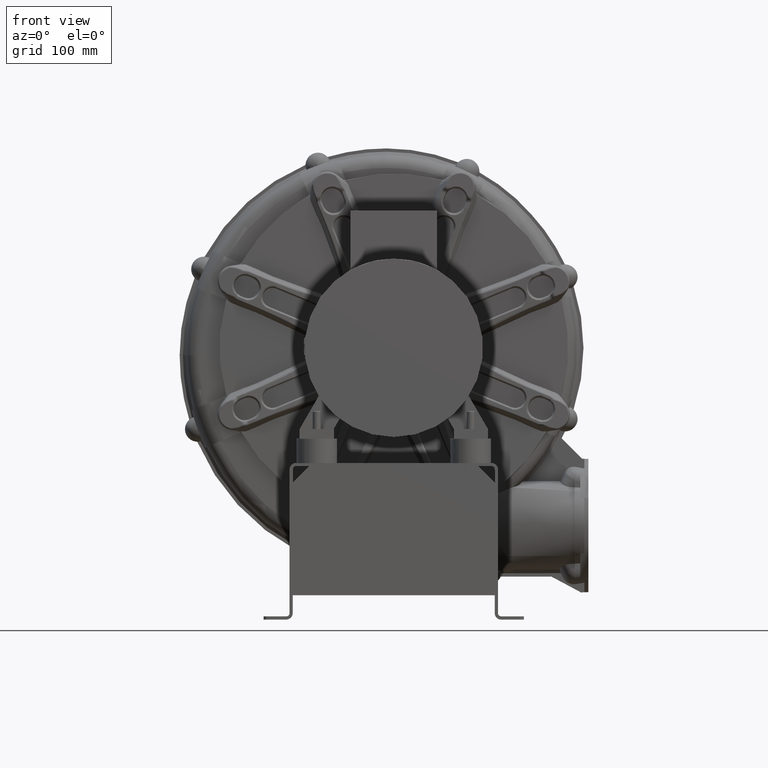
[diagram: clean part render]
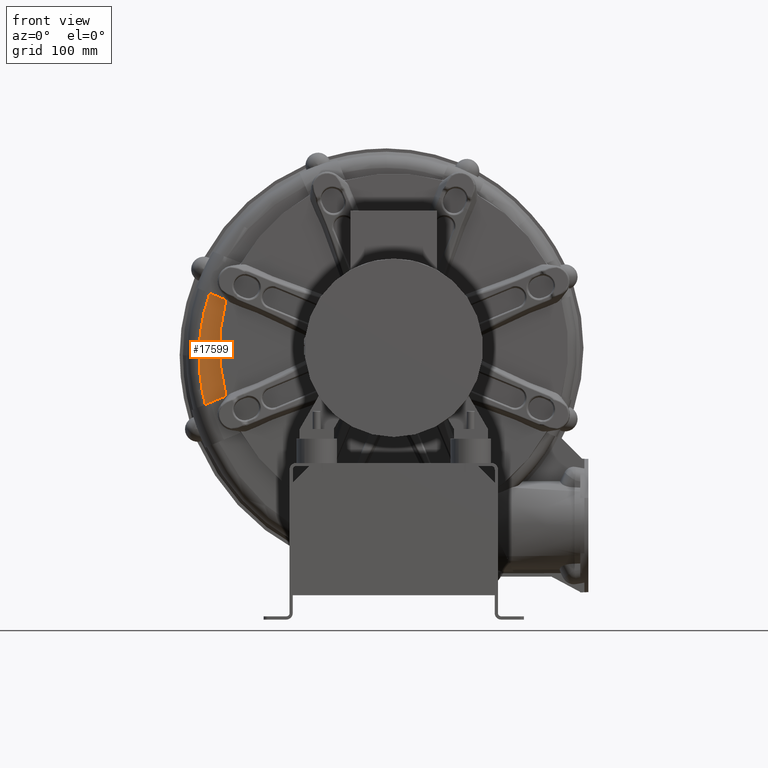
[diagram: same view with one face highlighted and labeled with its STEP entity id]
A machine part, front view. The second image highlights one B-rep face of the part: STEP entity #17599.
In plain terms, the highlighted planar face has unit normal (0, 1, 0).
Its self-contained STEP definition (entity closure, byte-faithful):
#17451=CARTESIAN_POINT('',(-226.96704840671043,163.4999999999996,213.49422075468681));
#17452=VERTEX_POINT('',#17451);
#17475=CARTESIAN_POINT('',(-240.00000000000006,163.49999999999955,136.99999999999989));
#17476=VERTEX_POINT('',#17475);
#17484=CARTESIAN_POINT('',(-9.000000000000064,163.49999999999963,136.99999999999986));
#17485=DIRECTION('',(-1.227111E-016,1.0,1.227111E-016));
#17486=DIRECTION('',(-0.707106781186547,-1.735397E-016,0.707106781186548));
#17487=AXIS2_PLACEMENT_3D('',#17484,#17485,#17486);
#17488=CIRCLE('',#17487,230.99999999999997);
#17489=EDGE_CURVE('',#17476,#17452,#17488,.T.);
#17559=CARTESIAN_POINT('',(-17.944793327150677,163.49999999999963,133.23884760258926));
#17560=DIRECTION('',(0.0,1.0,0.0));
#17561=DIRECTION('',(-1.0,0.0,0.0));
#17562=AXIS2_PLACEMENT_3D('',#17559,#17560,#17561);
#17563=PLANE('',#17562);
#17564=CARTESIAN_POINT('',(-232.46963708552903,163.4999999999996,76.226532386386339));
#17565=VERTEX_POINT('',#17564);
#17566=CARTESIAN_POINT('',(-206.71595808256853,163.4999999999996,86.89405551041574));
#17567=VERTEX_POINT('',#17566);
#17568=CARTESIAN_POINT('',(-232.46963708552903,163.49999999999957,76.226532386386339));
#17569=DIRECTION('',(0.923879532511287,0.0,0.382683432365088));
#17570=VECTOR('',#17569,27.875581281638453);
#17571=LINE('',#17568,#17570);
#17572=EDGE_CURVE('',#17565,#17567,#17571,.T.);
#17573=ORIENTED_EDGE('',*,*,#17572,.T.);
#17574=CARTESIAN_POINT('',(-206.71595808256836,163.4999999999996,205.10594448958457));
#17575=VERTEX_POINT('',#17574);
#17576=CARTESIAN_POINT('',(-6.106227E-014,163.49999999999963,145.99999999999989));
#17577=DIRECTION('',(0.0,1.0,0.0));
#17578=DIRECTION('',(1.0,0.0,0.0));
#17579=AXIS2_PLACEMENT_3D('',#17576,#17577,#17578);
#17580=CIRCLE('',#17579,215.0);
#17581=EDGE_CURVE('',#17567,#17575,#17580,.T.);
#17582=ORIENTED_EDGE('',*,*,#17581,.T.);
#17583=CARTESIAN_POINT('',(-206.71595808256833,163.49999999999957,205.1059444895846));
#17584=DIRECTION('',(-0.923879532511286,0.0,0.382683432365091));
#17585=VECTOR('',#17584,21.919622214268156);
#17586=LINE('',#17583,#17585);
#17587=EDGE_CURVE('',#17575,#17452,#17586,.T.);
#17588=ORIENTED_EDGE('',*,*,#17587,.T.);
#17589=ORIENTED_EDGE('',*,*,#17489,.F.);
#17590=CARTESIAN_POINT('',(8.999999999999936,163.49999999999963,136.99999999999986));
#17591=DIRECTION('',(-1.173769E-016,1.0,-1.173769E-016));
#17592=DIRECTION('',(-0.707106781186548,-1.659960E-016,-0.707106781186547));
#17593=AXIS2_PLACEMENT_3D('',#17590,#17591,#17592);
#17594=CIRCLE('',#17593,248.99999999999997);
#17595=EDGE_CURVE('',#17565,#17476,#17594,.T.);
#17596=ORIENTED_EDGE('',*,*,#17595,.F.);
#17597=EDGE_LOOP('',(#17573,#17582,#17588,#17589,#17596));
#17598=FACE_OUTER_BOUND('',#17597,.T.);
#17599=ADVANCED_FACE('',(#17598),#17563,.F.);